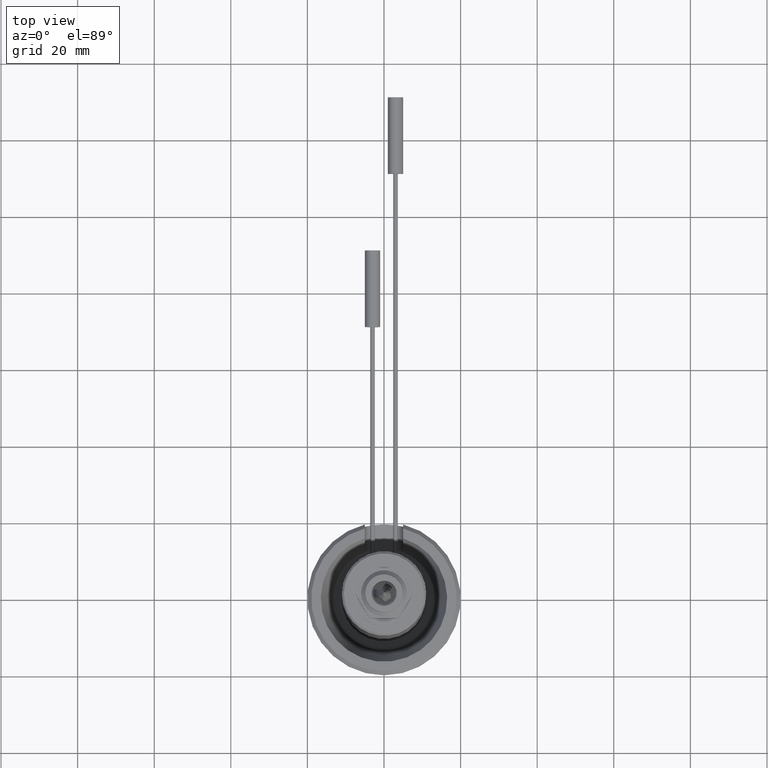
[diagram: clean part render]
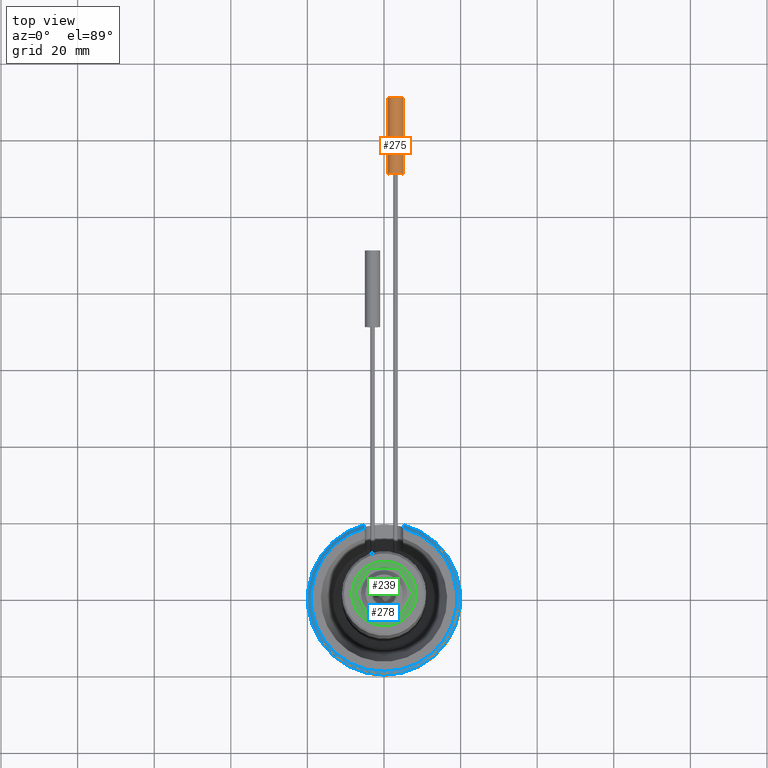
[diagram: same view with three faces highlighted in distinct colors, each labeled with its STEP entity id]
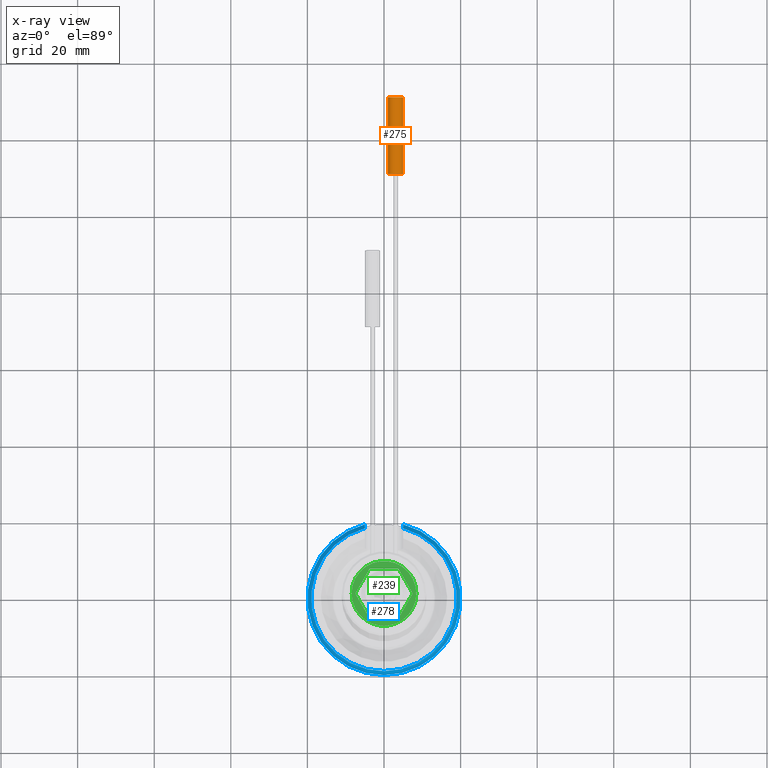
[diagram: x-ray of the same camera — body ghosted, the three highlighted faces saturated]
A machine part, top view with three faces highlighted in distinct colors.
The next image is the same camera in x-ray (body ghosted, the three faces saturated) — at least one of them is partly hidden behind the body in this view.
Their STEP definitions:

[orange] entity #275 — the highlighted cylindrical surface (bore or boss wall) has radius 2 mm, axis along (0, -1, 0).
#52=CYLINDRICAL_SURFACE('',#1239,2.);
#275=ADVANCED_FACE('',(#397,#398),#52,.T.);
#397=FACE_BOUND('',#491,.T.);
#398=FACE_BOUND('',#492,.T.);
#491=EDGE_LOOP('',(#723));
#492=EDGE_LOOP('',(#724));
#723=ORIENTED_EDGE('',*,*,#1051,.F.);
#724=ORIENTED_EDGE('',*,*,#1052,.T.);
#910=VERTEX_POINT('',#2241);
#911=VERTEX_POINT('',#2243);
#1051=EDGE_CURVE('',#910,#910,#1119,.T.);
#1052=EDGE_CURVE('',#911,#911,#1120,.T.);
#1119=CIRCLE('',#1237,2.);
#1120=CIRCLE('',#1238,2.);
#1237=AXIS2_PLACEMENT_3D('',#2240,#1541,#1542);
#1238=AXIS2_PLACEMENT_3D('',#2242,#1543,#1544);
#1239=AXIS2_PLACEMENT_3D('',#2244,#1545,#1546);
#1541=DIRECTION('',(0.,1.,0.));
#1542=DIRECTION('',(1.,0.,0.));
#1543=DIRECTION('',(0.,1.,0.));
#1544=DIRECTION('',(1.,0.,0.));
#1545=DIRECTION('',(0.,-1.,0.));
#1546=DIRECTION('',(0.,0.,-1.));
#2240=CARTESIAN_POINT('',(3.,131.,18.5));
#2241=CARTESIAN_POINT('',(5.,131.,18.5));
#2242=CARTESIAN_POINT('',(3.,111.,18.5));
#2243=CARTESIAN_POINT('',(5.,111.,18.5));
#2244=CARTESIAN_POINT('',(3.,131.,18.5));

[blue] entity #278 — the highlighted conical surface has half-angle 45 deg.
#209=FACE_OUTER_BOUND('',#496,.T.);
#278=ADVANCED_FACE('',(#209),#306,.T.);
#306=CONICAL_SURFACE('',#1242,19.,44.9999999999999);
#341=B_SPLINE_CURVE_WITH_KNOTS('',3,(#2212,#2213,#2214,#2215),
 .UNSPECIFIED.,.F.,.F.,(4,4),(0.,1.),.UNSPECIFIED.);
#342=B_SPLINE_CURVE_WITH_KNOTS('',3,(#2218,#2219,#2220,#2221),
 .UNSPECIFIED.,.F.,.F.,(4,4),(0.,1.),.UNSPECIFIED.);
#496=EDGE_LOOP('',(#728,#729,#730,#731));
#728=ORIENTED_EDGE('',*,*,#1044,.F.);
#729=ORIENTED_EDGE('',*,*,#1038,.F.);
#730=ORIENTED_EDGE('',*,*,#1042,.F.);
#731=ORIENTED_EDGE('',*,*,#1046,.F.);
#902=VERTEX_POINT('',#2204);
#903=VERTEX_POINT('',#2206);
#904=VERTEX_POINT('',#2211);
#905=VERTEX_POINT('',#2222);
#1038=EDGE_CURVE('',#902,#903,#1113,.T.);
#1042=EDGE_CURVE('',#904,#902,#341,.T.);
#1044=EDGE_CURVE('',#903,#905,#342,.T.);
#1046=EDGE_CURVE('',#905,#904,#1114,.T.);
#1113=CIRCLE('',#1222,20.);
#1114=CIRCLE('',#1226,19.);
#1222=AXIS2_PLACEMENT_3D('',#2205,#1506,#1507);
#1226=AXIS2_PLACEMENT_3D('',#2225,#1519,#1520);
#1242=AXIS2_PLACEMENT_3D('',#2247,#1551,#1552);
#1506=DIRECTION('',(0.,0.,-1.));
#1507=DIRECTION('',(-1.,0.,0.));
#1519=DIRECTION('',(0.,0.,1.));
#1520=DIRECTION('',(-1.,0.,0.));
#1551=DIRECTION('',(0.,0.,-1.));
#1552=DIRECTION('',(-1.,0.,0.));
#2204=CARTESIAN_POINT('',(5.,19.3649167310371,24.));
#2205=CARTESIAN_POINT('',(0.,0.,24.));
#2206=CARTESIAN_POINT('',(-5.,19.3649167310371,24.));
#2211=CARTESIAN_POINT('',(5.,18.3303027798234,25.));
#2212=CARTESIAN_POINT('',(5.,18.3303027798234,25.));
#2213=CARTESIAN_POINT('',(5.,18.6754829325216,24.6669864888135));
#2214=CARTESIAN_POINT('',(5.,19.0203385698962,24.3336363698914));
#2215=CARTESIAN_POINT('',(5.,19.3649167310371,24.));
#2218=CARTESIAN_POINT('',(-5.,19.3649167310371,24.));
#2219=CARTESIAN_POINT('',(-5.,19.0203385698962,24.3336363698914));
#2220=CARTESIAN_POINT('',(-5.,18.6754829325216,24.6669864888135));
#2221=CARTESIAN_POINT('',(-5.,18.3303027798234,25.));
#2222=CARTESIAN_POINT('',(-5.,18.3303027798234,25.));
#2225=CARTESIAN_POINT('',(0.,0.,25.));
#2247=CARTESIAN_POINT('',(0.,0.,25.));

[green] entity #239 — the highlighted planar face has unit normal (0, 0, -1).
#60=PLANE('',#1160);
#104=LINE('',#1948,#148);
#105=LINE('',#1952,#149);
#106=LINE('',#1953,#150);
#107=LINE('',#1954,#151);
#108=LINE('',#1955,#152);
#109=LINE('',#1956,#153);
#148=VECTOR('',#1357,1.);
#149=VECTOR('',#1360,1.);
#150=VECTOR('',#1361,1.);
#151=VECTOR('',#1362,1.);
#152=VECTOR('',#1363,1.);
#153=VECTOR('',#1364,1.);
#239=ADVANCED_FACE('',(#355,#356),#60,.F.);
#355=FACE_BOUND('',#433,.T.);
#356=FACE_BOUND('',#434,.T.);
#433=EDGE_LOOP('',(#585,#586,#587,#588,#589,#590,#591,#592,#593,#594,#595,
#596));
#434=EDGE_LOOP('',(#597));
#585=ORIENTED_EDGE('',*,*,#950,.F.);
#586=ORIENTED_EDGE('',*,*,#963,.T.);
#587=ORIENTED_EDGE('',*,*,#964,.F.);
#588=ORIENTED_EDGE('',*,*,#965,.F.);
#589=ORIENTED_EDGE('',*,*,#945,.F.);
#590=ORIENTED_EDGE('',*,*,#966,.F.);
#591=ORIENTED_EDGE('',*,*,#941,.F.);
#592=ORIENTED_EDGE('',*,*,#967,.T.);
#593=ORIENTED_EDGE('',*,*,#947,.F.);
#594=ORIENTED_EDGE('',*,*,#968,.T.);
#595=ORIENTED_EDGE('',*,*,#954,.F.);
#596=ORIENTED_EDGE('',*,*,#969,.T.);
#597=ORIENTED_EDGE('',*,*,#962,.T.);
#833=VERTEX_POINT('',#1788);
#834=VERTEX_POINT('',#1789);
#835=VERTEX_POINT('',#1794);
#836=VERTEX_POINT('',#1796);
#837=VERTEX_POINT('',#1800);
#838=VERTEX_POINT('',#1801);
#839=VERTEX_POINT('',#1806);
#840=VERTEX_POINT('',#1807);
#841=VERTEX_POINT('',#1812);
#842=VERTEX_POINT('',#1814);
#849=VERTEX_POINT('',#1946);
#850=VERTEX_POINT('',#1949);
#851=VERTEX_POINT('',#1951);
#941=EDGE_CURVE('',#833,#834,#1067,.T.);
#945=EDGE_CURVE('',#835,#836,#1068,.T.);
#947=EDGE_CURVE('',#837,#838,#1069,.T.);
#950=EDGE_CURVE('',#839,#840,#1070,.T.);
#954=EDGE_CURVE('',#841,#842,#1071,.T.);
#962=EDGE_CURVE('',#849,#849,#1076,.T.);
#963=EDGE_CURVE('',#839,#850,#104,.T.);
#964=EDGE_CURVE('',#851,#850,#1077,.T.);
#965=EDGE_CURVE('',#836,#851,#105,.T.);
#966=EDGE_CURVE('',#834,#835,#106,.T.);
#967=EDGE_CURVE('',#833,#838,#107,.T.);
#968=EDGE_CURVE('',#837,#842,#108,.T.);
#969=EDGE_CURVE('',#841,#840,#109,.T.);
#1067=CIRCLE('',#1141,7.45);
#1068=CIRCLE('',#1143,7.45);
#1069=CIRCLE('',#1145,7.45);
#1070=CIRCLE('',#1147,7.45);
#1071=CIRCLE('',#1149,7.45);
#1076=CIRCLE('',#1157,8.45);
#1077=CIRCLE('',#1159,7.45);
#1141=AXIS2_PLACEMENT_3D('',#1787,#1311,#1312);
#1143=AXIS2_PLACEMENT_3D('',#1795,#1318,#1319);
#1145=AXIS2_PLACEMENT_3D('',#1799,#1323,#1324);
#1147=AXIS2_PLACEMENT_3D('',#1805,#1329,#1330);
#1149=AXIS2_PLACEMENT_3D('',#1813,#1336,#1337);
#1157=AXIS2_PLACEMENT_3D('',#1945,#1353,#1354);
#1159=AXIS2_PLACEMENT_3D('',#1950,#1358,#1359);
#1160=AXIS2_PLACEMENT_3D('',#1957,#1365,#1366);
#1311=DIRECTION('',(0.,0.,1.));
#1312=DIRECTION('',(1.,0.,0.));
#1318=DIRECTION('',(0.,0.,1.));
#1319=DIRECTION('',(1.,0.,0.));
#1323=DIRECTION('',(0.,0.,1.));
#1324=DIRECTION('',(1.,0.,0.));
#1329=DIRECTION('',(0.,0.,1.));
#1330=DIRECTION('',(1.,0.,0.));
#1336=DIRECTION('',(0.,0.,1.));
#1337=DIRECTION('',(1.,0.,0.));
#1353=DIRECTION('',(0.,0.,1.));
#1354=DIRECTION('',(1.,0.,0.));
#1357=DIRECTION('',(-1.,-2.73999136442525E-15,0.));
#1358=DIRECTION('',(0.,0.,1.));
#1359=DIRECTION('',(1.,0.,0.));
#1360=DIRECTION('',(0.500000000000003,-0.866025403784437,0.));
#1361=DIRECTION('',(-0.499999999999996,-0.866025403784441,0.));
#1362=DIRECTION('',(1.,5.12259255088199E-15,0.));
#1363=DIRECTION('',(0.500000000000005,-0.866025403784436,0.));
#1364=DIRECTION('',(-0.499999999999994,-0.866025403784442,0.));
#1365=DIRECTION('',(0.,0.,-1.));
#1366=DIRECTION('',(-1.,0.,0.));
#1787=CARTESIAN_POINT('',(0.,0.,100.5));
#1788=CARTESIAN_POINT('',(-3.6403983298535,6.49999999999999,100.5));
#1789=CARTESIAN_POINT('',(-3.80896595967212,6.40267743354755,100.5));
#1794=CARTESIAN_POINT('',(-7.44936428952559,0.0973225664524279,100.5));
#1795=CARTESIAN_POINT('',(0.,0.,100.5));
#1796=CARTESIAN_POINT('',(-7.44936428952559,-0.0973225664524481,100.5));
#1799=CARTESIAN_POINT('',(0.,0.,100.5));
#1800=CARTESIAN_POINT('',(3.80896595967208,6.40267743354757,100.5));
#1801=CARTESIAN_POINT('',(3.64039832985346,6.50000000000001,100.5));
#1805=CARTESIAN_POINT('',(0.,0.,100.5));
#1806=CARTESIAN_POINT('',(3.64039832985348,-6.49999999999998,100.5));
#1807=CARTESIAN_POINT('',(3.80896595967214,-6.40267743354754,100.5));
#1812=CARTESIAN_POINT('',(7.44936428952559,-0.0973225664524036,100.5));
#1813=CARTESIAN_POINT('',(0.,0.,100.5));
#1814=CARTESIAN_POINT('',(7.44936428952559,0.0973225664524678,100.5));
#1945=CARTESIAN_POINT('',(0.,0.,100.5));
#1946=CARTESIAN_POINT('',(8.45,0.,100.5));
#1948=CARTESIAN_POINT('',(3.64039832985348,-6.49999999999998,100.5));
#1949=CARTESIAN_POINT('',(-3.64039832985348,-6.5,100.5));
#1950=CARTESIAN_POINT('',(0.,0.,100.5));
#1951=CARTESIAN_POINT('',(-3.8089659596721,-6.40267743354756,100.5));
#1952=CARTESIAN_POINT('',(-7.44936428952559,-0.0973225664524513,100.5));
#1953=CARTESIAN_POINT('',(-3.80896595967212,6.40267743354755,100.5));
#1954=CARTESIAN_POINT('',(-3.64039832985349,6.49999999999997,100.5));
#1955=CARTESIAN_POINT('',(3.80896595967208,6.40267743354756,100.5));
#1956=CARTESIAN_POINT('',(7.44936428952557,-0.0973225664524033,100.5));
#1957=CARTESIAN_POINT('',(-8.44999999999997,0.,100.5));